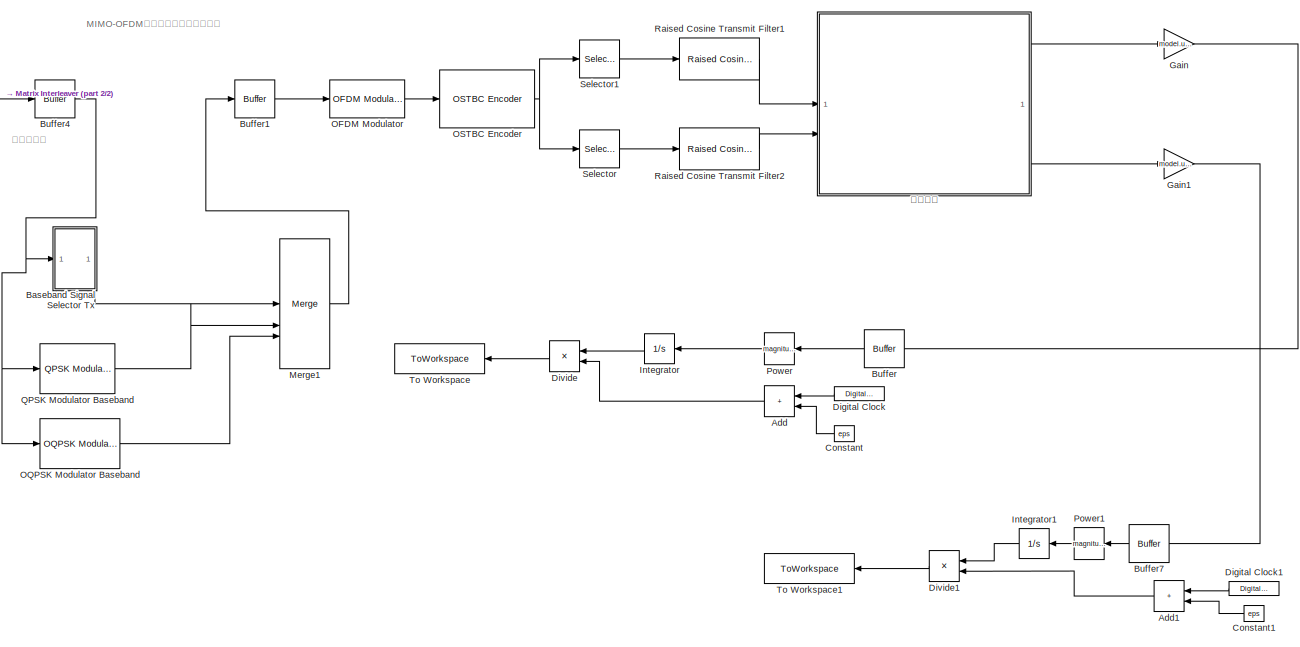
[diagram: root canvas - part 1/2, center side, full height]
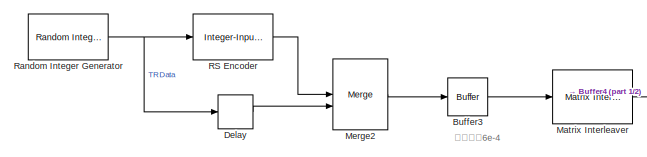
[diagram: root canvas - part 2/2, top left region]
MODEL slx_9b86110953fe
KIND model
CONFIG AbsTol = auto
CONFIG EnableMultiTasking = off
CONFIG FixedStep = auto
CONFIG InitFcn = Parameter_Initialize_2
CONFIG MaxStep = auto
CONFIG MinStep = auto
CONFIG RelTol = 1e-3
CONFIG SampleTimeConstraint = Unconstrained
CONFIG SolverName = VariableStepAuto
CONFIG StartTime = 0.0
CONFIG StopTime = 0.01
BLOCK [Sum] Add
  IconShape = rectangular
  NameLocation = top
BLOCK [Sum] Add1
  IconShape = rectangular
  NameLocation = top
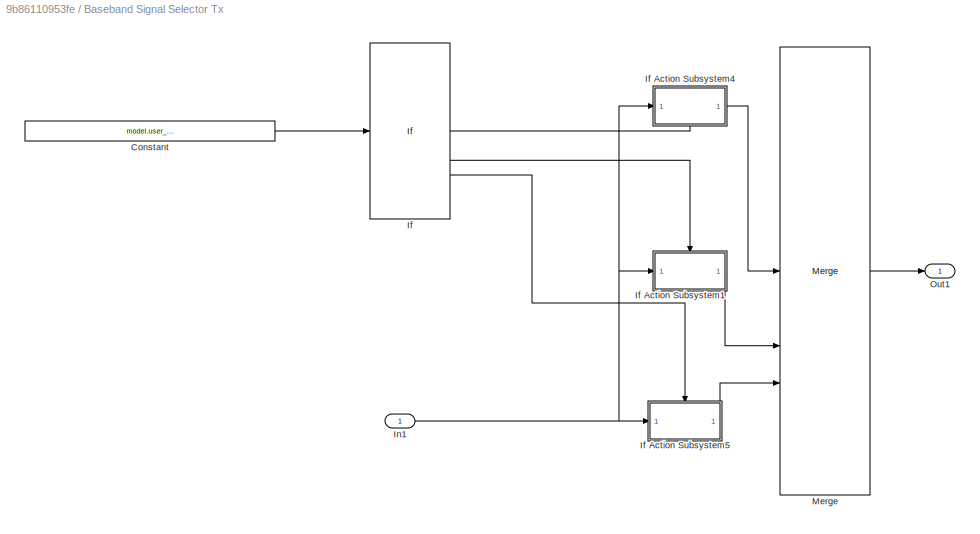
BLOCK [SubSystem] Baseband Signal Selector Tx
BLOCK [Constant] Baseband Signal Selector Tx/Constant
  Value = model.user_defined.TR.Baseband_Modulation_type
BLOCK [If] Baseband Signal Selector Tx/If
  ElseIfExpressions = u1 == 2
  IfExpression = u1 == 1
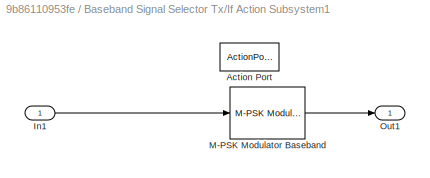
BLOCK [SubSystem] Baseband Signal Selector Tx/If Action Subsystem1
  TreatAsAtomicUnit = on
BLOCK [ActionPort] Baseband Signal Selector Tx/If Action Subsystem1/Action Port
  ActionPortLabel = elseif(u1 == 2)
BLOCK [Inport] Baseband Signal Selector Tx/If Action Subsystem1/In1
BLOCK [Reference] Baseband Signal Selector Tx/If Action Subsystem1/M-PSK Modulator Baseband  REF=commdigbbndpm3/M-PSK
Modulator
Baseband
  SourceBlock = commdigbbndpm3/M-PSK\nModulator\nBaseband
  SourceType = M-PSK Modulator Baseband
BLOCK [Outport] Baseband Signal Selector Tx/If Action Subsystem1/Out1
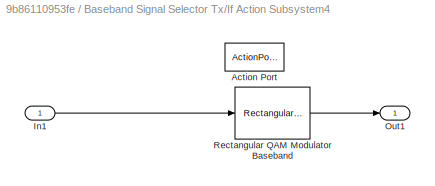
BLOCK [SubSystem] Baseband Signal Selector Tx/If Action Subsystem4
  TreatAsAtomicUnit = on
BLOCK [ActionPort] Baseband Signal Selector Tx/If Action Subsystem4/Action Port
  ActionPortLabel = if(u1 == 1)
BLOCK [Inport] Baseband Signal Selector Tx/If Action Subsystem4/In1
BLOCK [Outport] Baseband Signal Selector Tx/If Action Subsystem4/Out1
BLOCK [Reference] Baseband Signal Selector Tx/If Action Subsystem4/Rectangular QAM Modulator Baseband  REF=commdigbbndam3/Rectangular QAM
Modulator
Baseband
  LibrarySourceBlock = commhdldigbbndam/Rectangular QAM\nModulator\nBaseband
  SourceBlock = commdigbbndam3/Rectangular QAM\nModulator\nBaseband
  SourceType = Rectangular QAM Modulator Baseband
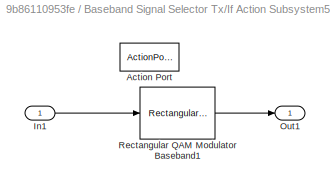
BLOCK [SubSystem] Baseband Signal Selector Tx/If Action Subsystem5
  TreatAsAtomicUnit = on
BLOCK [ActionPort] Baseband Signal Selector Tx/If Action Subsystem5/Action Port
  ActionPortLabel = else
BLOCK [Inport] Baseband Signal Selector Tx/If Action Subsystem5/In1
BLOCK [Outport] Baseband Signal Selector Tx/If Action Subsystem5/Out1
BLOCK [Reference] Baseband Signal Selector Tx/If Action Subsystem5/Rectangular QAM Modulator Baseband1  REF=commdigbbndam3/Rectangular QAM
Modulator
Baseband
  LibrarySourceBlock = commhdldigbbndam/Rectangular QAM\nModulator\nBaseband
  SourceBlock = commdigbbndam3/Rectangular QAM\nModulator\nBaseband
  SourceType = Rectangular QAM Modulator Baseband
BLOCK [Inport] Baseband Signal Selector Tx/In1
BLOCK [Merge] Baseband Signal Selector Tx/Merge
  Inputs = 3
BLOCK [Outport] Baseband Signal Selector Tx/Out1
BLOCK [Buffer] Buffer
  N = model.parameter.Buffer.Output_buffer_size
  NameLocation = top
  OutputFrames = off
BLOCK [Buffer] Buffer1
  N = model.parameter.Buffer1.Output_size
  OutputFrames = off
BLOCK [Buffer] Buffer3
  N = model.parameter.Buffer3.Output_size
  OutputFrames = off
BLOCK [Buffer] Buffer4
  N = model.parameter.Buffer4.Output_size
  OutputFrames = off
BLOCK [Buffer] Buffer7
  N = 1
  NameLocation = top
  OutputFrames = off
BLOCK [Constant] Constant
  NameLocation = top
  SampleTime = model.parameter.channel_estimate_fs
  Value = eps
BLOCK [Constant] Constant1
  NameLocation = top
  SampleTime = model.parameter.channel_estimate_fs
  Value = eps
BLOCK [Delay] Delay
  Commented = on
  DelayLength = 0
  InitialCondition = 0
  InputPortMap = u0
BLOCK [DigitalClock] Digital Clock
  NameLocation = top
  SampleTime = model.parameter.channel_estimate_fs
BLOCK [DigitalClock] Digital Clock1
  NameLocation = top
  SampleTime = model.parameter.channel_estimate_fs
BLOCK [Product] Divide
  Inputs = */
  NameLocation = top
BLOCK [Product] Divide1
  Inputs = */
  NameLocation = top
BLOCK [Gain] Gain
  Gain = model.user_defined.TR.Sig_power_controller_coeffience
BLOCK [Gain] Gain1
  Gain = model.user_defined.TR.Sig_power_controller_coeffience
BLOCK [Integrator] Integrator
  NameLocation = top
BLOCK [Integrator] Integrator1
  NameLocation = top
BLOCK [Reference] Matrix Interleaver  REF=commblkintrlv2/Matrix
Interleaver
  SourceBlock = commblkintrlv2/Matrix\nInterleaver
  SourceType = Matrix Interleaver
  StatePerturbationForJacobian = 1.0e-05
BLOCK [Merge] Merge1
  Inputs = 3
BLOCK [Merge] Merge2
BLOCK [Reference] OFDM Modulator  REF=commofdm/OFDM Modulator
  SourceBlock = commofdm/OFDM Modulator
  SourceType = OFDM Modulator
  StatePerturbationForJacobian = 1.0e-05
BLOCK [Reference] OQPSK Modulator Baseband  REF=commdigbbndpm3/OQPSK
Modulator
Baseband
  Commented = on
  SourceBlock = commdigbbndpm3/OQPSK\nModulator\nBaseband
  SourceType = OQPSK Modulator Baseband
  UserDataPersistent = on
BLOCK [Reference] OSTBC Encoder  REF=commmimo/OSTBC Encoder
  SourceBlock = commmimo/OSTBC Encoder
  SourceType = OSTBC Encoder
BLOCK [Math] Power
  NameLocation = top
  Operator = magnitude^2
BLOCK [Math] Power1
  NameLocation = top
  Operator = magnitude^2
BLOCK [Reference] QPSK Modulator Baseband  REF=commdigbbndpm3/QPSK
Modulator
Baseband
  Commented = on
  SourceBlock = commdigbbndpm3/QPSK\nModulator\nBaseband
  SourceType = QPSK Modulator Baseband
BLOCK [Reference] RS Encoder  REF=commblkcod2/Integer-Input
RS Encoder
  SourceBlock = commblkcod2/Integer-Input\nRS Encoder
  SourceType = Integer-Input RS Encoder
BLOCK [Reference] Raised Cosine Transmit Filter1  REF=commfilt2/Raised Cosine
Transmit Filter
  SourceBlock = commfilt2/Raised Cosine\nTransmit Filter
  SourceType = Raised Cosine Transmit Filter
BLOCK [Reference] Raised Cosine Transmit Filter2  REF=commfilt2/Raised Cosine
Transmit Filter
  SourceBlock = commfilt2/Raised Cosine\nTransmit Filter
  SourceType = Raised Cosine Transmit Filter
BLOCK [Reference] Random Integer Generator  REF=commrandsrc3/Random Integer
Generator
  SourceBlock = commrandsrc3/Random Integer\nGenerator
  SourceType = Random Integer Generator
BLOCK [Selector] Selector
  IndexOptions = Index vector (dialog),Index vector (dialog)
  Indices = [1:272],2
  InputPortWidth = 3
  NumberOfDimensions = 2
  OutputSizes = 1,1
BLOCK [Selector] Selector1
  IndexOptions = Index vector (dialog),Index vector (dialog)
  Indices = [1:272],1
  InputPortWidth = 3
  NumberOfDimensions = 2
  OutputSizes = 1,1
BLOCK [ToWorkspace] To Workspace
  FixptAsFi = on
  MaxDataPoints = inf
  NameLocation = top
  SampleTime = -1
  SaveFormat = Timeseries
  VariableName = FirstBranch
BLOCK [ToWorkspace] To Workspace1
  FixptAsFi = on
  MaxDataPoints = inf
  NameLocation = top
  SampleTime = -1
  SaveFormat = Timeseries
  VariableName = SecondBranch
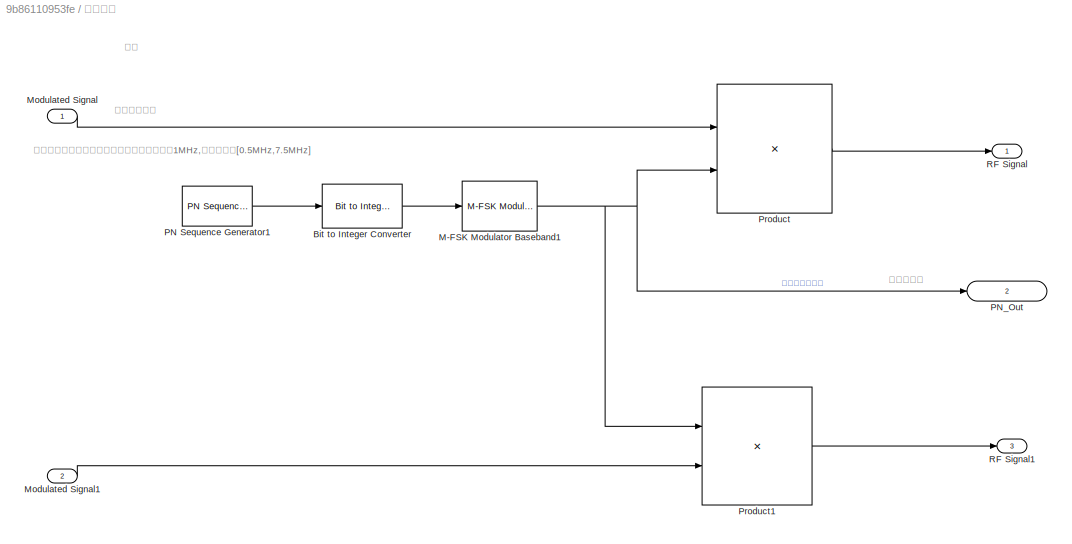
BLOCK [SubSystem] 跳频调制
BLOCK [Reference] 跳频调制/Bit to Integer Converter  REF=simulink/Logic and Bit
Operations/Bit to Integer
Converter
  SourceBlock = simulink/Logic and Bit\nOperations/Bit to Integer\nConverter
  SourceType = Bit to Integer Converter
BLOCK [Reference] 跳频调制/M-FSK Modulator Baseband1  REF=commdigbbndfm2/M-FSK
Modulator
Baseband
  SourceBlock = commdigbbndfm2/M-FSK\nModulator\nBaseband
  SourceType = M-FSK Modulator Baseband
  UserDataPersistent = on
BLOCK [Inport] 跳频调制/Modulated Signal
BLOCK [Inport] 跳频调制/Modulated Signal1
  Port = 2
BLOCK [Reference] 跳频调制/PN Sequence Generator1  REF=commseqgen3/PN Sequence
Generator
  SourceBlock = commseqgen3/PN Sequence\nGenerator
  SourceType = PN Sequence Generator
BLOCK [Outport] 跳频调制/PN_Out
  IconDisplay = Signal name
  Port = 2
BLOCK [Product] 跳频调制/Product
BLOCK [Product] 跳频调制/Product1
BLOCK [Outport] 跳频调制/RF Signal
BLOCK [Outport] 跳频调制/RF Signal1
  Port = 3
ANNOTATION (root): MIMO-OFDM联合仿真（只针对信源）
ANNOTATION (root): 此处延时6e-4
ANNOTATION (root): 此处无延时
ANNOTATION 跳频调制: 产生跳频序列，并生成基带跳频，跳频间隔是1MHz,跳频范围是[0.5MHz,7.5MHz]
ANNOTATION 跳频调制: 此处无延时
ANNOTATION 跳频调制: 跳频
ANNOTATION 跳频调制: 跳频基带信号
LINE Add1:1 -> Divide1:2
LINE Add:1 -> Divide:2
LINE Baseband Signal Selector Tx/Constant:1 -> Baseband Signal Selector Tx/If:1
LINE Baseband Signal Selector Tx/If Action Subsystem1/In1:1 -> Baseband Signal Selector Tx/If Action Subsystem1/M-PSK Modulator Baseband:1
LINE Baseband Signal Selector Tx/If Action Subsystem1/M-PSK Modulator Baseband:1 -> Baseband Signal Selector Tx/If Action Subsystem1/Out1:1
LINE Baseband Signal Selector Tx/If Action Subsystem1:1 -> Baseband Signal Selector Tx/Merge:2
LINE Baseband Signal Selector Tx/If Action Subsystem4/In1:1 -> Baseband Signal Selector Tx/If Action Subsystem4/Rectangular QAM Modulator Baseband:1
LINE Baseband Signal Selector Tx/If Action Subsystem4/Rectangular QAM Modulator Baseband:1 -> Baseband Signal Selector Tx/If Action Subsystem4/Out1:1
LINE Baseband Signal Selector Tx/If Action Subsystem4:1 -> Baseband Signal Selector Tx/Merge:1
LINE Baseband Signal Selector Tx/If Action Subsystem5/In1:1 -> Baseband Signal Selector Tx/If Action Subsystem5/Rectangular QAM Modulator Baseband1:1
LINE Baseband Signal Selector Tx/If Action Subsystem5/Rectangular QAM Modulator Baseband1:1 -> Baseband Signal Selector Tx/If Action Subsystem5/Out1:1
LINE Baseband Signal Selector Tx/If Action Subsystem5:1 -> Baseband Signal Selector Tx/Merge:3
LINE Baseband Signal Selector Tx/If:1 -> Baseband Signal Selector Tx/If Action Subsystem4:ifaction
LINE Baseband Signal Selector Tx/If:2 -> Baseband Signal Selector Tx/If Action Subsystem1:ifaction
LINE Baseband Signal Selector Tx/If:3 -> Baseband Signal Selector Tx/If Action Subsystem5:ifaction
NET Baseband Signal Selector Tx/In1:1 -> Baseband Signal Selector Tx/If Action Subsystem1:1, Baseband Signal Selector Tx/If Action Subsystem4:1, Baseband Signal Selector Tx/If Action Subsystem5:1
LINE Baseband Signal Selector Tx/Merge:1 -> Baseband Signal Selector Tx/Out1:1
LINE Baseband Signal Selector Tx:1 -> Merge1:1
LINE Buffer1:1 -> OFDM Modulator:1
LINE Buffer3:1 -> Matrix Interleaver:1
NET Buffer4:1 -> Baseband Signal Selector Tx:1, OQPSK Modulator Baseband:1, QPSK Modulator Baseband:1
LINE Buffer7:1 -> Power1:1
LINE Buffer:1 -> Power:1
LINE Constant1:1 -> Add1:2
LINE Constant:1 -> Add:2
LINE Delay:1 -> Merge2:2
LINE Digital Clock1:1 -> Add1:1
LINE Digital Clock:1 -> Add:1
LINE Divide1:1 -> To Workspace1:1
LINE Divide:1 -> To Workspace:1
LINE Gain1:1 -> Buffer7:1
LINE Gain:1 -> Buffer:1
LINE Integrator1:1 -> Divide1:1
LINE Integrator:1 -> Divide:1
LINE Matrix Interleaver:1 -> Buffer4:1
LINE Merge1:1 -> Buffer1:1
LINE Merge2:1 -> Buffer3:1
LINE OFDM Modulator:1 -> OSTBC Encoder:1
LINE OQPSK Modulator Baseband:1 -> Merge1:3
NET OSTBC Encoder:1 -> Selector1:1, Selector:1
LINE Power1:1 -> Integrator1:1
LINE Power:1 -> Integrator:1
LINE QPSK Modulator Baseband:1 -> Merge1:2
LINE RS Encoder:1 -> Merge2:1
LINE Raised Cosine Transmit Filter1:1 -> 跳频调制:1
LINE Raised Cosine Transmit Filter2:1 -> 跳频调制:2
NET Random Integer Generator:1 -> Delay:1, RS Encoder:1
LINE Selector1:1 -> Raised Cosine Transmit Filter1:1
LINE Selector:1 -> Raised Cosine Transmit Filter2:1
LINE 跳频调制/Bit to Integer Converter:1 -> 跳频调制/M-FSK Modulator Baseband1:1
NET 跳频调制/M-FSK Modulator Baseband1:1 -> 跳频调制/PN_Out:1, 跳频调制/Product1:1, 跳频调制/Product:2
LINE 跳频调制/Modulated Signal1:1 -> 跳频调制/Product1:2
LINE 跳频调制/Modulated Signal:1 -> 跳频调制/Product:1
LINE 跳频调制/PN Sequence Generator1:1 -> 跳频调制/Bit to Integer Converter:1
LINE 跳频调制/Product1:1 -> 跳频调制/RF Signal1:1
LINE 跳频调制/Product:1 -> 跳频调制/RF Signal:1
LINE 跳频调制:1 -> Gain:1
LINE 跳频调制:3 -> Gain1:1
note: NET lines group one-source signal fan-out (src -> all destinations, sorted); 1:1 wires keep LINE
